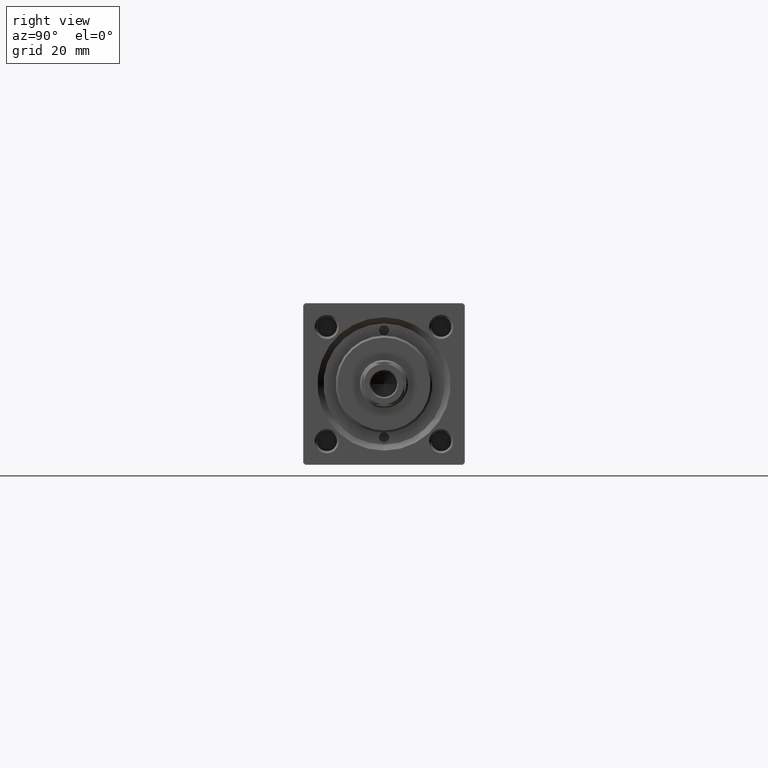
[diagram: clean part render]
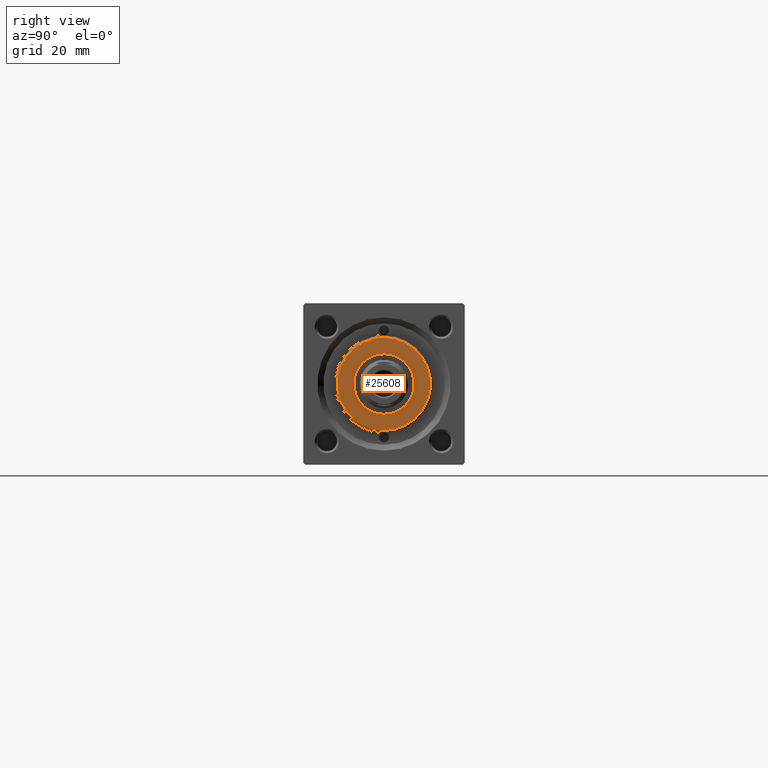
[diagram: same view with one face highlighted and labeled with its STEP entity id]
A machine part, right view. The second image highlights one B-rep face of the part: STEP entity #25608.
In plain terms, the highlighted planar face has unit normal (1, 0, 0).
Its self-contained STEP definition (entity closure, byte-faithful):
#166 = VERTEX_POINT ( 'NONE', #37632 ) ;
#545 = CARTESIAN_POINT ( 'NONE',  ( 0.000000000000000000, 0.000000000000000000, 35.70000000000000284 ) ) ;
#1222 = CARTESIAN_POINT ( 'NONE',  ( 0.000000000000000000, 0.000000000000000000, 35.70000000000000284 ) ) ;
#1473 = CARTESIAN_POINT ( 'NONE',  ( 0.000000000000000000, 0.000000000000000000, 35.70000000000000284 ) ) ;
#1987 = CIRCLE ( 'NONE', #33667, 7.500000000000000888 ) ;
#3089 = ORIENTED_EDGE ( 'NONE', *, *, #45385, .T. ) ;
#3969 = CARTESIAN_POINT ( 'NONE',  ( 7.500000000000000888, 0.000000000000000000, 35.70000000000000284 ) ) ;
#6646 = PLANE ( 'NONE',  #41795 ) ;
#6783 = CIRCLE ( 'NONE', #42458, 11.49999999999999645 ) ;
#7030 = AXIS2_PLACEMENT_3D ( 'NONE', #545, #35358, #31539 ) ;
#7379 = VERTEX_POINT ( 'NONE', #11571 ) ;
#7819 = FACE_BOUND ( 'NONE', #22645, .T. ) ;
#9228 = DIRECTION ( 'NONE',  ( 0.000000000000000000, 0.000000000000000000, 1.000000000000000000 ) ) ;
#9819 = EDGE_CURVE ( 'NONE', #7379, #166, #6783, .T. ) ;
#10772 = ORIENTED_EDGE ( 'NONE', *, *, #9819, .T. ) ;
#11571 = CARTESIAN_POINT ( 'NONE',  ( 11.49999999999999645, 1.438959988998139963E-15, 35.70000000000000284 ) ) ;
#12561 = DIRECTION ( 'NONE',  ( 1.000000000000000000, 0.000000000000000000, 0.000000000000000000 ) ) ;
#12918 = DIRECTION ( 'NONE',  ( 1.000000000000000000, 0.000000000000000000, 0.000000000000000000 ) ) ;
#17225 = CARTESIAN_POINT ( 'NONE',  ( -7.500000000000000888, 9.184850993605149917E-16, 35.70000000000000284 ) ) ;
#19462 = VERTEX_POINT ( 'NONE', #3969 ) ;
#19860 = ORIENTED_EDGE ( 'NONE', *, *, #21053, .F. ) ;
#21053 = EDGE_CURVE ( 'NONE', #25087, #19462, #45836, .T. ) ;
#21136 = EDGE_CURVE ( 'NONE', #19462, #25087, #1987, .T. ) ;
#22645 = EDGE_LOOP ( 'NONE', ( #23447, #19860 ) ) ;
#23319 = DIRECTION ( 'NONE',  ( 0.000000000000000000, 0.000000000000000000, 1.000000000000000000 ) ) ;
#23447 = ORIENTED_EDGE ( 'NONE', *, *, #21136, .F. ) ;
#25087 = VERTEX_POINT ( 'NONE', #17225 ) ;
#25539 = AXIS2_PLACEMENT_3D ( 'NONE', #1222, #43917, #12918 ) ;
#25608 = ADVANCED_FACE ( 'NONE', ( #7819, #45535 ), #6646, .T. ) ;
#31539 = DIRECTION ( 'NONE',  ( 1.000000000000000000, 0.000000000000000000, 0.000000000000000000 ) ) ;
#33576 = CARTESIAN_POINT ( 'NONE',  ( 0.000000000000000000, 0.000000000000000000, 35.70000000000000284 ) ) ;
#33667 = AXIS2_PLACEMENT_3D ( 'NONE', #1473, #44671, #47996 ) ;
#33826 = CIRCLE ( 'NONE', #7030, 11.49999999999999645 ) ;
#34976 = EDGE_LOOP ( 'NONE', ( #3089, #10772 ) ) ;
#35358 = DIRECTION ( 'NONE',  ( 0.000000000000000000, 0.000000000000000000, 1.000000000000000000 ) ) ;
#37632 = CARTESIAN_POINT ( 'NONE',  ( -11.49999999999999645, 0.000000000000000000, 35.70000000000000284 ) ) ;
#38816 = DIRECTION ( 'NONE',  ( 1.000000000000000000, 0.000000000000000000, -0.000000000000000000 ) ) ;
#41795 = AXIS2_PLACEMENT_3D ( 'NONE', #33576, #23319, #38816 ) ;
#42458 = AXIS2_PLACEMENT_3D ( 'NONE', #43564, #9228, #12561 ) ;
#43564 = CARTESIAN_POINT ( 'NONE',  ( 0.000000000000000000, 0.000000000000000000, 35.70000000000000284 ) ) ;
#43917 = DIRECTION ( 'NONE',  ( 0.000000000000000000, 0.000000000000000000, 1.000000000000000000 ) ) ;
#44671 = DIRECTION ( 'NONE',  ( 0.000000000000000000, 0.000000000000000000, 1.000000000000000000 ) ) ;
#45385 = EDGE_CURVE ( 'NONE', #166, #7379, #33826, .T. ) ;
#45535 = FACE_OUTER_BOUND ( 'NONE', #34976, .T. ) ;
#45836 = CIRCLE ( 'NONE', #25539, 7.500000000000000888 ) ;
#47996 = DIRECTION ( 'NONE',  ( 1.000000000000000000, 0.000000000000000000, 0.000000000000000000 ) ) ;